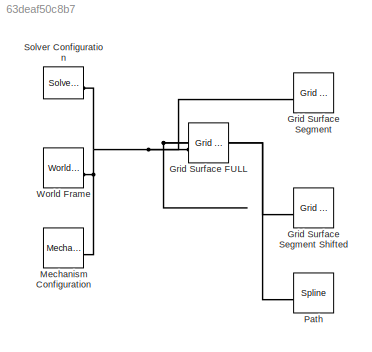
MODEL slx_63deaf50c8b7
KIND model
CONFIG AbsTol = 1e-3
CONFIG EnableMultiTasking = on
CONFIG SolverName = VariableStepAuto
BLOCK [Reference] Grid Surface FULL  REF=sm_lib/Curves and Surfaces/Grid Surface
  Commented = on
  SourceBlock = sm_lib/Curves and Surfaces/Grid Surface
  SourceType = Grid Surface
BLOCK [Reference] Grid Surface Segment  REF=sm_lib/Curves and Surfaces/Grid Surface
  SourceBlock = sm_lib/Curves and Surfaces/Grid Surface
  SourceType = Grid Surface
BLOCK [Reference] Grid Surface Segment Shifted  REF=sm_lib/Curves and Surfaces/Grid Surface
  SourceBlock = sm_lib/Curves and Surfaces/Grid Surface
  SourceType = Grid Surface
BLOCK [Reference] Mechanism Configuration  REF=sm_lib/Utilities/Mechanism
Configuration
  SourceBlock = sm_lib/Utilities/Mechanism\nConfiguration
  SourceType = Mechanism\nConfiguration
BLOCK [Reference] Path  REF=sm_lib/Curves and Surfaces/Spline
  SourceBlock = sm_lib/Curves and Surfaces/Spline
  SourceType = Spline
BLOCK [Reference] Solver Configuration  REF=nesl_utility/Solver
Configuration
  SourceBlock = nesl_utility/Solver\nConfiguration
  SourceType = Solver\nConfiguration
BLOCK [Reference] World Frame  REF=sm_lib/Frames and
Transforms/World Frame
  SourceBlock = sm_lib/Frames and\nTransforms/World Frame
  SourceType = World Frame
PNET net1: Grid Surface FULL:LConn1 -- Grid Surface Segment Shifted:LConn1 -- Grid Surface Segment:LConn1 -- Mechanism Configuration:RConn1 -- Path:LConn1 -- Solver Configuration:RConn1 -- World Frame:RConn1
note: PNET lines group multi-terminal physical nets as a canonical sorted terminal list (undirected conserving connections); 2-terminal nets keep the pairwise PLINE form
